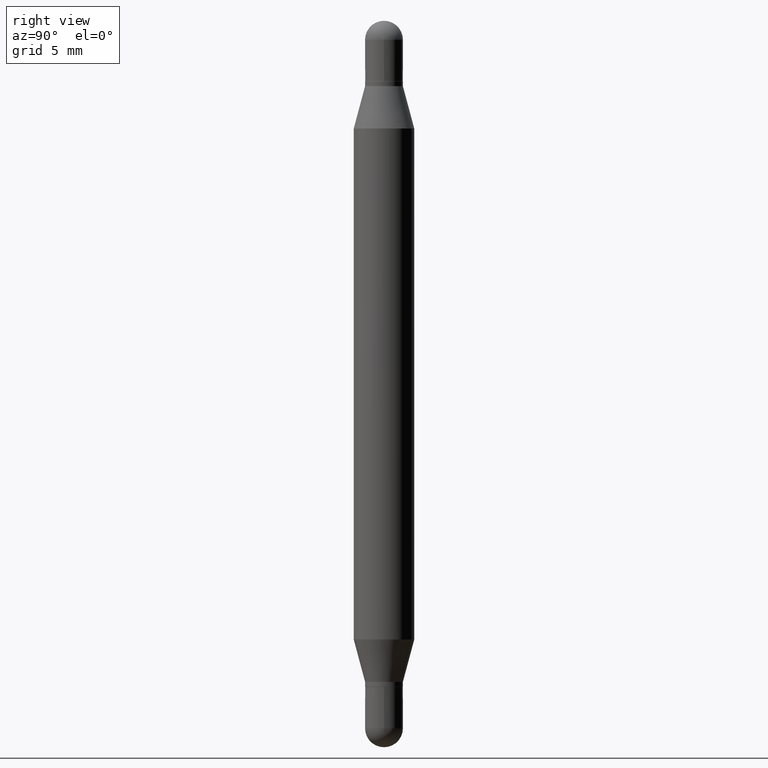
[diagram: clean part render]
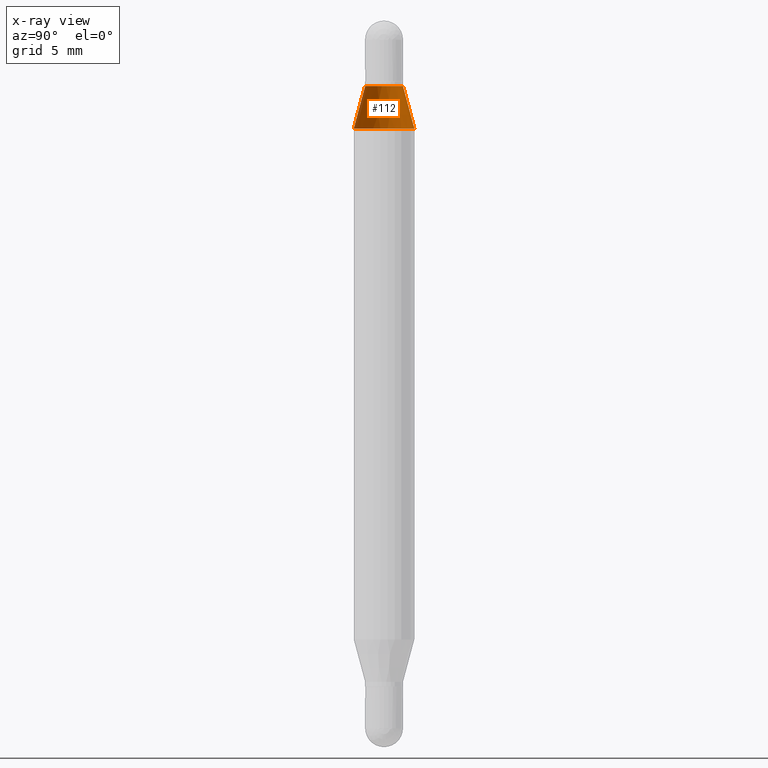
[diagram: x-ray — body ghosted, one internal face saturated and labeled with its STEP entity id]
A machine part, right view, then the same camera in x-ray: the body is ghosted and one INTERNAL B-rep face — a face not visible from any outside direction — is saturated and labeled: STEP entity #112.
In plain terms, the highlighted conical surface has half-angle 15 deg.
Its self-contained STEP definition (entity closure, byte-faithful):
#47 = EDGE_CURVE ( 'NONE', #236, #1101, #120, .T. ) ;
#49 = CARTESIAN_POINT ( 'NONE',  ( -2.726846925636147479E-16, -0.03905000000000039689, -0.1349999999999993705 ) ) ;
#91 = DIRECTION ( 'NONE',  ( 1.775627540710965300E-15, 0.2588190451025181860, -0.9659258262890689783 ) ) ;
#112 = ADVANCED_FACE ( 'NONE', ( #704 ), #443, .T. ) ;
#120 = CIRCLE ( 'NONE', #160, 0.03904999999999992505 ) ;
#160 = AXIS2_PLACEMENT_3D ( 'NONE', #331, #425, #195 ) ;
#195 = DIRECTION ( 'NONE',  ( -6.982962677686265133E-15, -1.000000000000000000, 3.497884755011867510E-15 ) ) ;
#236 = VERTEX_POINT ( 'NONE', #1065 ) ;
#270 = CARTESIAN_POINT ( 'NONE',  ( -2.726846925636147479E-16, -0.03905000000000039689, -0.1349999999999993705 ) ) ;
#296 = VERTEX_POINT ( 'NONE', #995 ) ;
#331 = CARTESIAN_POINT ( 'NONE',  ( 3.338086663967455998E-29, -4.786169689759957599E-16, -0.1349999999999995093 ) ) ;
#340 = LINE ( 'NONE', #666, #780 ) ;
#391 = DIRECTION ( 'NONE',  ( -1.807323732225330139E-15, -0.2588190451025249583, -0.9659258262890670910 ) ) ;
#405 = DIRECTION ( 'NONE',  ( 2.445484735507293493E-29, 3.479637278673797391E-15, 1.000000000000000000 ) ) ;
#425 = DIRECTION ( 'NONE',  ( 2.445484735507293493E-29, 3.479637278673797391E-15, 1.000000000000000000 ) ) ;
#428 = EDGE_CURVE ( 'NONE', #236, #835, #340, .T. ) ;
#443 = CONICAL_SURFACE ( 'NONE', #939, 0.03904999999999992505, 0.2617993877991502960 ) ;
#469 = VECTOR ( 'NONE', #391, 39.37007874015748143 ) ;
#490 = ORIENTED_EDGE ( 'NONE', *, *, #1022, .T. ) ;
#523 = DIRECTION ( 'NONE',  ( -6.982962677686265133E-15, -1.000000000000000000, 3.497884755011867510E-15 ) ) ;
#554 = LINE ( 'NONE', #49, #469 ) ;
#575 = CARTESIAN_POINT ( 'NONE',  ( 3.124066175503445420E-29, -7.831429630443502139E-16, -0.2225165914374896692 ) ) ;
#593 = ORIENTED_EDGE ( 'NONE', *, *, #428, .T. ) ;
#612 = DIRECTION ( 'NONE',  ( -2.445484735507293493E-29, -3.479637278673797391E-15, -1.000000000000000000 ) ) ;
#666 = CARTESIAN_POINT ( 'NONE',  ( 2.679024468130111404E-16, 0.03904999999999944627, -0.1349999999999996481 ) ) ;
#704 = FACE_OUTER_BOUND ( 'NONE', #827, .T. ) ;
#713 = CARTESIAN_POINT ( 'NONE',  ( 3.338086663967455998E-29, -4.786169689759957599E-16, -0.1349999999999995093 ) ) ;
#780 = VECTOR ( 'NONE', #91, 39.37007874015748143 ) ;
#805 = ORIENTED_EDGE ( 'NONE', *, *, #47, .F. ) ;
#827 = EDGE_LOOP ( 'NONE', ( #805, #593, #490, #1017 ) ) ;
#835 = VERTEX_POINT ( 'NONE', #898 ) ;
#862 = EDGE_CURVE ( 'NONE', #1101, #296, #554, .T. ) ;
#898 = CARTESIAN_POINT ( 'NONE',  ( 4.287811248607519320E-16, 0.06249999999999921590, -0.2225165914374898912 ) ) ;
#904 = CIRCLE ( 'NONE', #1093, 0.06250000000000000000 ) ;
#927 = DIRECTION ( 'NONE',  ( -6.982962677686265922E-15, -1.000000000000000000, 3.278217592397115862E-15 ) ) ;
#939 = AXIS2_PLACEMENT_3D ( 'NONE', #713, #612, #523 ) ;
#995 = CARTESIAN_POINT ( 'NONE',  ( -4.364351673553603122E-16, -0.06250000000000079103, -0.2225165914374894749 ) ) ;
#1017 = ORIENTED_EDGE ( 'NONE', *, *, #862, .F. ) ;
#1022 = EDGE_CURVE ( 'NONE', #835, #296, #904, .T. ) ;
#1065 = CARTESIAN_POINT ( 'NONE',  ( 2.679024468130112883E-16, 0.03904999999999944627, -0.1349999999999996481 ) ) ;
#1093 = AXIS2_PLACEMENT_3D ( 'NONE', #575, #405, #927 ) ;
#1101 = VERTEX_POINT ( 'NONE', #270 ) ;